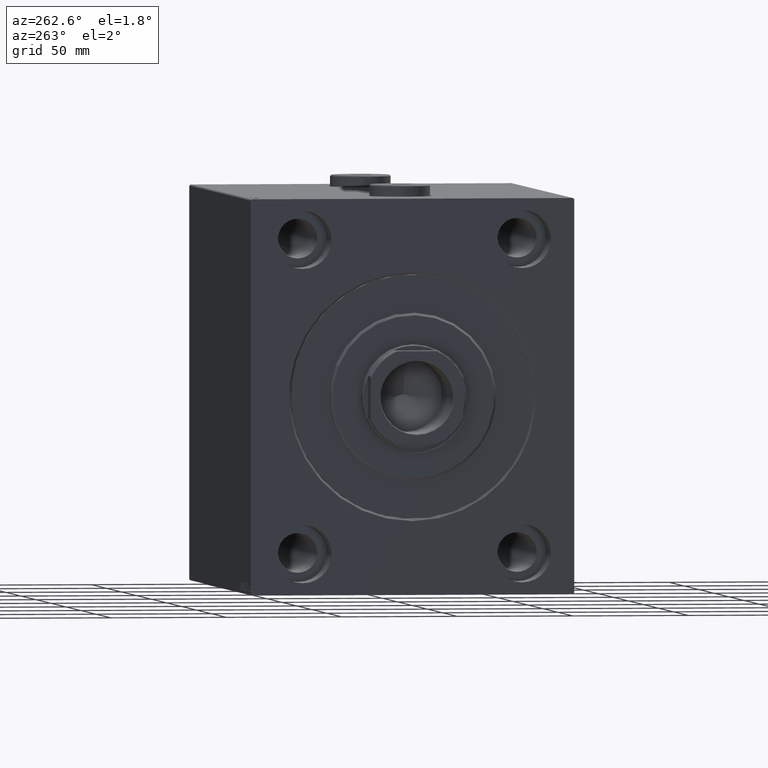
[diagram: clean part render]
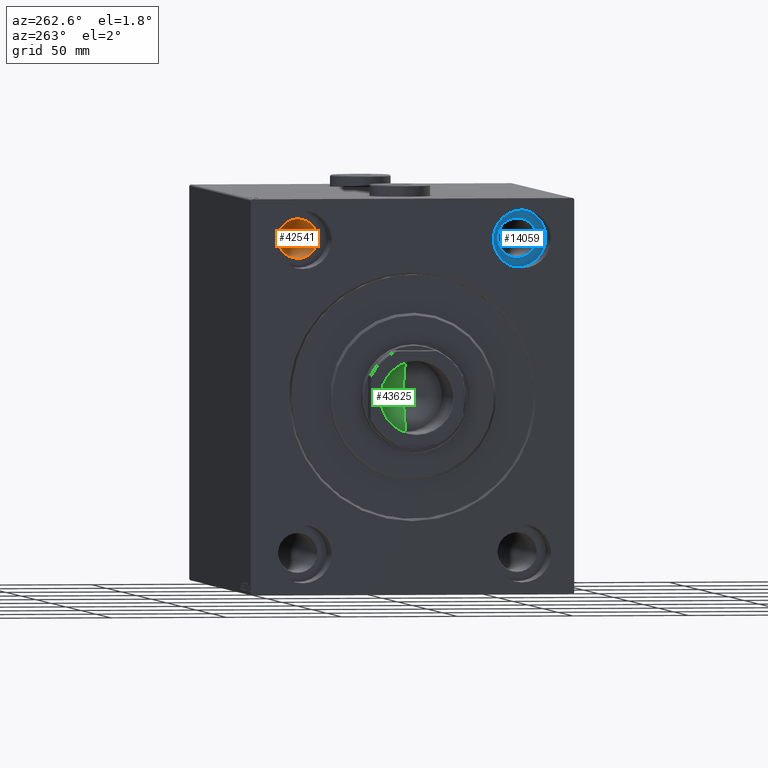
[diagram: same view with three faces highlighted in distinct colors, each labeled with its STEP entity id]
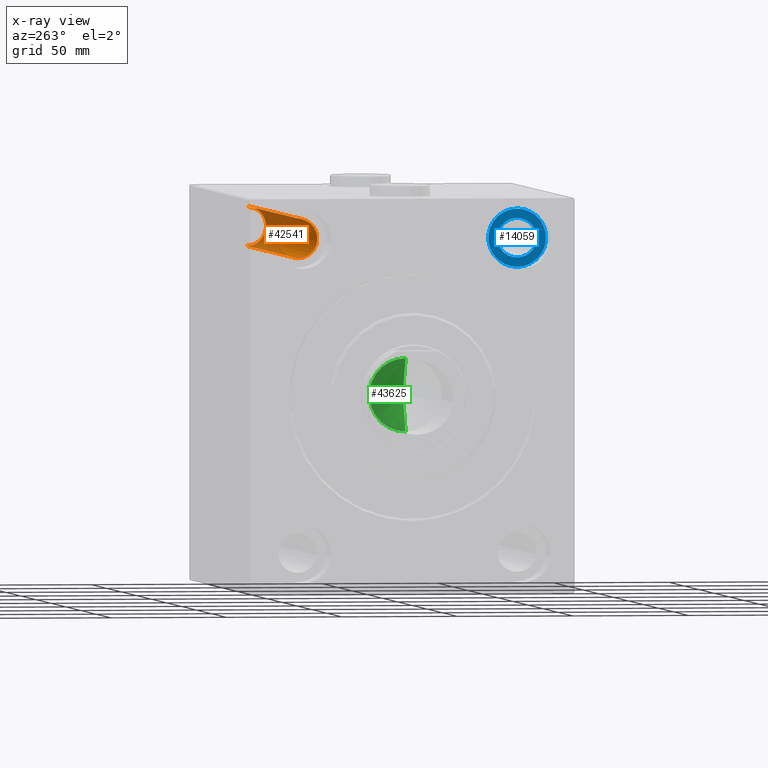
[diagram: x-ray of the same camera — body ghosted, the three highlighted faces saturated]
A machine part, auxiliary view with three faces highlighted in distinct colors.
The next image is the same camera in x-ray (body ghosted, the three faces saturated) — at least one of them is partly hidden behind the body in this view.
Their STEP definitions:

[orange] entity #42541 — the highlighted cylindrical surface (edge-blend (fillet) strip) has radius 8.5 mm, axis along (-1, -0, -0).
#2753 = CIRCLE ( 'NONE', #22515, 8.500000000000007105 ) ;
#3507 = DIRECTION ( 'NONE',  ( 0.000000000000000000, 0.000000000000000000, 1.000000000000000000 ) ) ;
#4238 = ORIENTED_EDGE ( 'NONE', *, *, #33908, .T. ) ;
#5692 = VERTEX_POINT ( 'NONE', #30961 ) ;
#6433 = CIRCLE ( 'NONE', #13765, 8.500000000000007105 ) ;
#6930 = FACE_OUTER_BOUND ( 'NONE', #33143, .T. ) ;
#7620 = EDGE_CURVE ( 'NONE', #20532, #9378, #2753, .T. ) ;
#8472 = EDGE_CURVE ( 'NONE', #28938, #5692, #6433, .T. ) ;
#9378 = VERTEX_POINT ( 'NONE', #9521 ) ;
#9521 = CARTESIAN_POINT ( 'NONE',  ( 188.0000000000000000, 47.50000000000000711, 76.00000000000001421 ) ) ;
#9922 = DIRECTION ( 'NONE',  ( -1.000000000000000000, -0.000000000000000000, -0.000000000000000000 ) ) ;
#10221 = VECTOR ( 'NONE', #31749, 1000.000000000000000 ) ;
#11355 = DIRECTION ( 'NONE',  ( 0.000000000000000000, 0.000000000000000000, -1.000000000000000000 ) ) ;
#11388 = CARTESIAN_POINT ( 'NONE',  ( 205.0000000000000284, 47.50000000000000711, 59.00000000000000000 ) ) ;
#13765 = AXIS2_PLACEMENT_3D ( 'NONE', #16167, #19376, #26264 ) ;
#14338 = CARTESIAN_POINT ( 'NONE',  ( 188.0000000000000000, 47.50000000000000711, 67.50000000000000000 ) ) ;
#16167 = CARTESIAN_POINT ( 'NONE',  ( 17.00000000000001421, 47.50000000000000711, 67.50000000000000000 ) ) ;
#16831 = CARTESIAN_POINT ( 'NONE',  ( 17.00000000000001421, 47.50000000000000711, 59.00000000000000000 ) ) ;
#17596 = EDGE_CURVE ( 'NONE', #9378, #5692, #31285, .T. ) ;
#17720 = CARTESIAN_POINT ( 'NONE',  ( 205.0000000000000284, 47.50000000000000711, 67.50000000000000000 ) ) ;
#18914 = VECTOR ( 'NONE', #31806, 1000.000000000000000 ) ;
#19240 = CARTESIAN_POINT ( 'NONE',  ( 188.0000000000000000, 47.50000000000000711, 59.00000000000000000 ) ) ;
#19376 = DIRECTION ( 'NONE',  ( -1.000000000000000000, 0.000000000000000000, 0.000000000000000000 ) ) ;
#20369 = ORIENTED_EDGE ( 'NONE', *, *, #8472, .T. ) ;
#20532 = VERTEX_POINT ( 'NONE', #19240 ) ;
#21194 = CARTESIAN_POINT ( 'NONE',  ( 205.0000000000000284, 47.50000000000000711, 76.00000000000001421 ) ) ;
#22515 = AXIS2_PLACEMENT_3D ( 'NONE', #14338, #28331, #11355 ) ;
#26264 = DIRECTION ( 'NONE',  ( 0.000000000000000000, 0.000000000000000000, 1.000000000000000000 ) ) ;
#28331 = DIRECTION ( 'NONE',  ( -1.000000000000000000, -0.000000000000000000, -0.000000000000000000 ) ) ;
#28938 = VERTEX_POINT ( 'NONE', #16831 ) ;
#30320 = ORIENTED_EDGE ( 'NONE', *, *, #7620, .F. ) ;
#30961 = CARTESIAN_POINT ( 'NONE',  ( 17.00000000000001421, 47.50000000000000711, 76.00000000000001421 ) ) ;
#31285 = LINE ( 'NONE', #21194, #10221 ) ;
#31578 = LINE ( 'NONE', #11388, #18914 ) ;
#31749 = DIRECTION ( 'NONE',  ( -1.000000000000000000, -0.000000000000000000, -0.000000000000000000 ) ) ;
#31806 = DIRECTION ( 'NONE',  ( -1.000000000000000000, -0.000000000000000000, -0.000000000000000000 ) ) ;
#33063 = AXIS2_PLACEMENT_3D ( 'NONE', #17720, #9922, #3507 ) ;
#33143 = EDGE_LOOP ( 'NONE', ( #30320, #4238, #20369, #37067 ) ) ;
#33908 = EDGE_CURVE ( 'NONE', #20532, #28938, #31578, .T. ) ;
#37067 = ORIENTED_EDGE ( 'NONE', *, *, #17596, .F. ) ;
#41326 = CYLINDRICAL_SURFACE ( 'NONE', #33063, 8.500000000000007105 ) ;
#42541 = ADVANCED_FACE ( 'NONE', ( #6930 ), #41326, .F. ) ;

[blue] entity #14059 — the highlighted planar face has unit normal (-1, 0, 0).
#708 = AXIS2_PLACEMENT_3D ( 'NONE', #35962, #7536, #17639 ) ;
#1017 = AXIS2_PLACEMENT_3D ( 'NONE', #27100, #24093, #23872 ) ;
#1336 = DIRECTION ( 'NONE',  ( 0.000000000000000000, 0.000000000000000000, 1.000000000000000000 ) ) ;
#1434 = AXIS2_PLACEMENT_3D ( 'NONE', #32723, #32502, #4755 ) ;
#2240 = DIRECTION ( 'NONE',  ( 0.000000000000000000, 0.000000000000000000, 1.000000000000000000 ) ) ;
#2684 = EDGE_LOOP ( 'NONE', ( #21499, #36371 ) ) ;
#4386 = AXIS2_PLACEMENT_3D ( 'NONE', #23779, #23994, #2240 ) ;
#4755 = DIRECTION ( 'NONE',  ( 0.000000000000000000, 0.000000000000000000, 1.000000000000000000 ) ) ;
#4817 = CARTESIAN_POINT ( 'NONE',  ( 17.00000000000001421, -47.49999999999997868, 59.00000000000000000 ) ) ;
#5477 = VERTEX_POINT ( 'NONE', #16796 ) ;
#7536 = DIRECTION ( 'NONE',  ( -1.000000000000000000, 0.000000000000000000, 0.000000000000000000 ) ) ;
#9987 = EDGE_CURVE ( 'NONE', #5477, #38627, #18955, .T. ) ;
#11895 = CARTESIAN_POINT ( 'NONE',  ( 17.00000000000001421, -47.49999999999997868, 67.50000000000000000 ) ) ;
#14059 = ADVANCED_FACE ( 'NONE', ( #45359, #39172 ), #38721, .T. ) ;
#16796 = CARTESIAN_POINT ( 'NONE',  ( 17.00000000000001421, -47.49999999999997868, 76.00000000000001421 ) ) ;
#17639 = DIRECTION ( 'NONE',  ( 0.000000000000000000, 0.000000000000000000, 1.000000000000000000 ) ) ;
#18955 = CIRCLE ( 'NONE', #41612, 8.500000000000007105 ) ;
#18998 = DIRECTION ( 'NONE',  ( -1.000000000000000000, 0.000000000000000000, 0.000000000000000000 ) ) ;
#20786 = CIRCLE ( 'NONE', #1017, 8.500000000000007105 ) ;
#21499 = ORIENTED_EDGE ( 'NONE', *, *, #9987, .F. ) ;
#21521 = CARTESIAN_POINT ( 'NONE',  ( 17.00000000000000000, -47.49999999999997868, 80.00000000000001421 ) ) ;
#23779 = CARTESIAN_POINT ( 'NONE',  ( 17.00000000000000000, -47.49999999999997868, 67.50000000000000000 ) ) ;
#23872 = DIRECTION ( 'NONE',  ( 0.000000000000000000, 0.000000000000000000, 1.000000000000000000 ) ) ;
#23994 = DIRECTION ( 'NONE',  ( -1.000000000000000000, 0.000000000000000000, 0.000000000000000000 ) ) ;
#24093 = DIRECTION ( 'NONE',  ( -1.000000000000000000, 0.000000000000000000, 0.000000000000000000 ) ) ;
#25661 = ORIENTED_EDGE ( 'NONE', *, *, #37680, .T. ) ;
#25679 = EDGE_CURVE ( 'NONE', #38627, #5477, #20786, .T. ) ;
#26385 = CARTESIAN_POINT ( 'NONE',  ( 17.00000000000000000, -47.49999999999997868, 55.00000000000000000 ) ) ;
#27100 = CARTESIAN_POINT ( 'NONE',  ( 17.00000000000001421, -47.49999999999997868, 67.50000000000000000 ) ) ;
#28203 = ORIENTED_EDGE ( 'NONE', *, *, #37857, .T. ) ;
#29277 = CIRCLE ( 'NONE', #1434, 12.50000000000001066 ) ;
#31036 = EDGE_LOOP ( 'NONE', ( #28203, #25661 ) ) ;
#32502 = DIRECTION ( 'NONE',  ( -1.000000000000000000, 0.000000000000000000, 0.000000000000000000 ) ) ;
#32723 = CARTESIAN_POINT ( 'NONE',  ( 17.00000000000000000, -47.49999999999997868, 67.50000000000000000 ) ) ;
#35962 = CARTESIAN_POINT ( 'NONE',  ( 17.00000000000000000, 0.000000000000000000, 0.000000000000000000 ) ) ;
#36371 = ORIENTED_EDGE ( 'NONE', *, *, #25679, .F. ) ;
#37680 = EDGE_CURVE ( 'NONE', #40029, #40166, #29277, .T. ) ;
#37857 = EDGE_CURVE ( 'NONE', #40166, #40029, #45334, .T. ) ;
#38627 = VERTEX_POINT ( 'NONE', #4817 ) ;
#38721 = PLANE ( 'NONE',  #708 ) ;
#39172 = FACE_OUTER_BOUND ( 'NONE', #31036, .T. ) ;
#40029 = VERTEX_POINT ( 'NONE', #26385 ) ;
#40166 = VERTEX_POINT ( 'NONE', #21521 ) ;
#41612 = AXIS2_PLACEMENT_3D ( 'NONE', #11895, #18998, #1336 ) ;
#45334 = CIRCLE ( 'NONE', #4386, 12.50000000000001066 ) ;
#45359 = FACE_BOUND ( 'NONE', #2684, .T. ) ;

[green] entity #43625 — the highlighted conical surface has half-angle 59 deg.
#2067 = CIRCLE ( 'NONE', #14500, 15.74999999999999289 ) ;
#5788 = DIRECTION ( 'NONE',  ( 1.000000000000000000, 0.000000000000000000, 0.000000000000000000 ) ) ;
#6545 = VECTOR ( 'NONE', #18676, 1000.000000000000000 ) ;
#7738 = VERTEX_POINT ( 'NONE', #21624 ) ;
#8119 = ORIENTED_EDGE ( 'NONE', *, *, #12784, .T. ) ;
#8758 = EDGE_CURVE ( 'NONE', #33591, #41249, #2067, .T. ) ;
#11618 = ORIENTED_EDGE ( 'NONE', *, *, #14961, .F. ) ;
#12784 = EDGE_CURVE ( 'NONE', #7738, #33591, #25799, .T. ) ;
#13570 = LINE ( 'NONE', #14033, #39559 ) ;
#14033 = CARTESIAN_POINT ( 'NONE',  ( -15.74999999999999289, 1.928818708657080556E-15, 156.0000000000000000 ) ) ;
#14500 = AXIS2_PLACEMENT_3D ( 'NONE', #41515, #33775, #5788 ) ;
#14961 = EDGE_CURVE ( 'NONE', #7738, #41249, #13570, .T. ) ;
#18676 = DIRECTION ( 'NONE',  ( 0.8571673007021120005, 0.000000000000000000, 0.5150380749100547106 ) ) ;
#21624 = CARTESIAN_POINT ( 'NONE',  ( -1.199718644317817648E-14, 0.000000000000000000, 146.5364452503159214 ) ) ;
#24128 = DIRECTION ( 'NONE',  ( -0.8571673007021120005, 1.049727191138618326E-16, 0.5150380749100547106 ) ) ;
#24926 = CARTESIAN_POINT ( 'NONE',  ( 0.000000000000000000, 0.000000000000000000, 156.0000000000000000 ) ) ;
#25799 = LINE ( 'NONE', #36099, #6545 ) ;
#27782 = EDGE_LOOP ( 'NONE', ( #11618, #8119, #33863 ) ) ;
#28874 = CARTESIAN_POINT ( 'NONE',  ( 15.74999999999999289, 0.000000000000000000, 156.0000000000000000 ) ) ;
#32375 = AXIS2_PLACEMENT_3D ( 'NONE', #24926, #35678, #39795 ) ;
#33591 = VERTEX_POINT ( 'NONE', #28874 ) ;
#33775 = DIRECTION ( 'NONE',  ( -0.000000000000000000, -0.000000000000000000, 1.000000000000000000 ) ) ;
#33863 = ORIENTED_EDGE ( 'NONE', *, *, #8758, .T. ) ;
#34068 = CARTESIAN_POINT ( 'NONE',  ( -15.74999999999999289, 1.928818708657080556E-15, 156.0000000000000000 ) ) ;
#35678 = DIRECTION ( 'NONE',  ( -0.000000000000000000, -0.000000000000000000, 1.000000000000000000 ) ) ;
#36099 = CARTESIAN_POINT ( 'NONE',  ( 15.74999999999999289, 0.000000000000000000, 156.0000000000000000 ) ) ;
#39559 = VECTOR ( 'NONE', #24128, 1000.000000000000000 ) ;
#39653 = CONICAL_SURFACE ( 'NONE', #32375, 15.74999999999999289, 1.029744258676653867 ) ;
#39795 = DIRECTION ( 'NONE',  ( 1.000000000000000000, 0.000000000000000000, 0.000000000000000000 ) ) ;
#41249 = VERTEX_POINT ( 'NONE', #34068 ) ;
#41515 = CARTESIAN_POINT ( 'NONE',  ( 0.000000000000000000, 0.000000000000000000, 156.0000000000000000 ) ) ;
#43224 = FACE_OUTER_BOUND ( 'NONE', #27782, .T. ) ;
#43625 = ADVANCED_FACE ( 'NONE', ( #43224 ), #39653, .F. ) ;